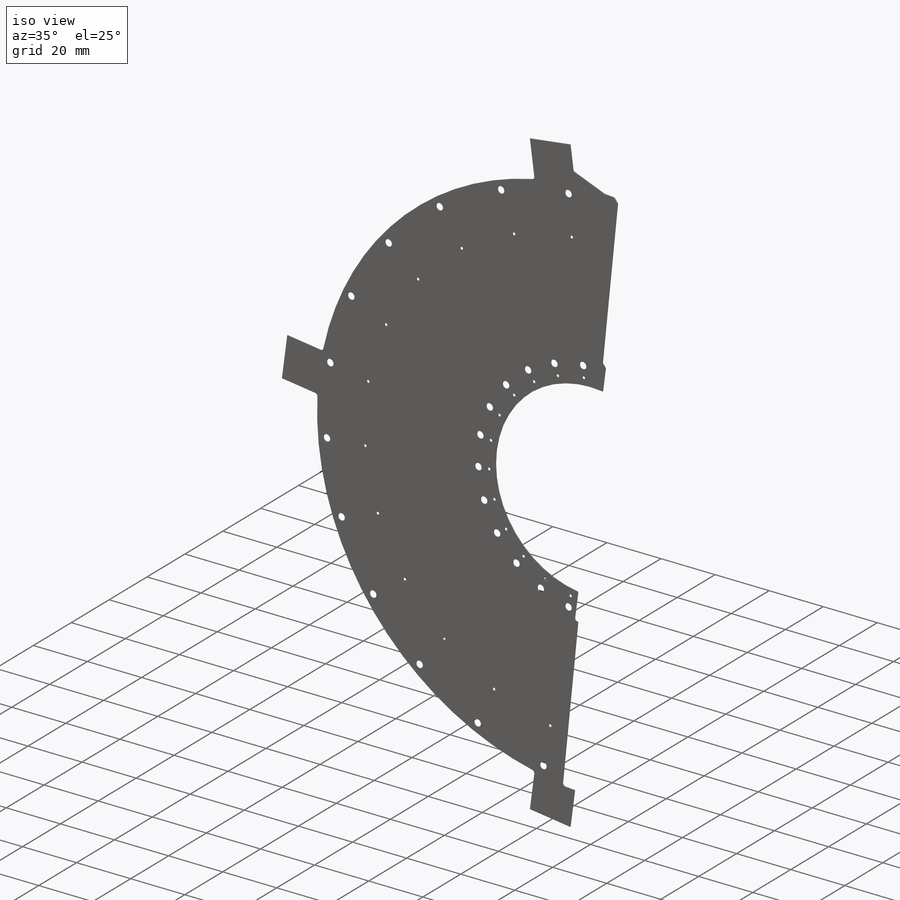
[diagram: iso view]
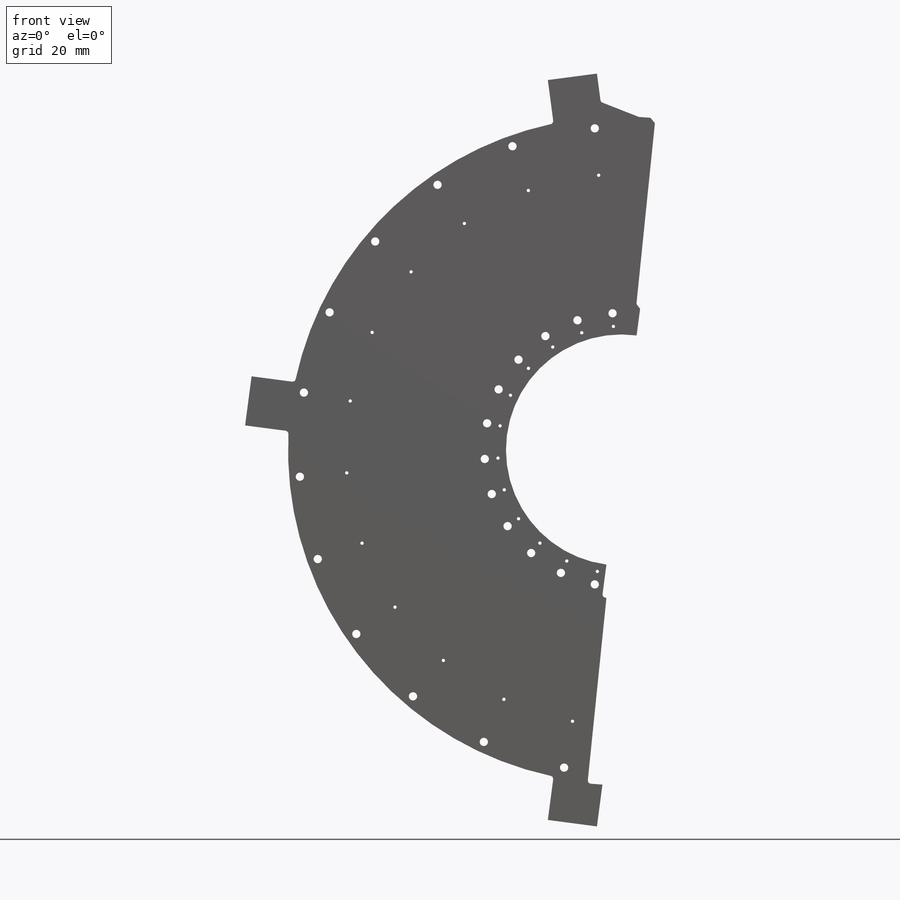
[diagram: front view]
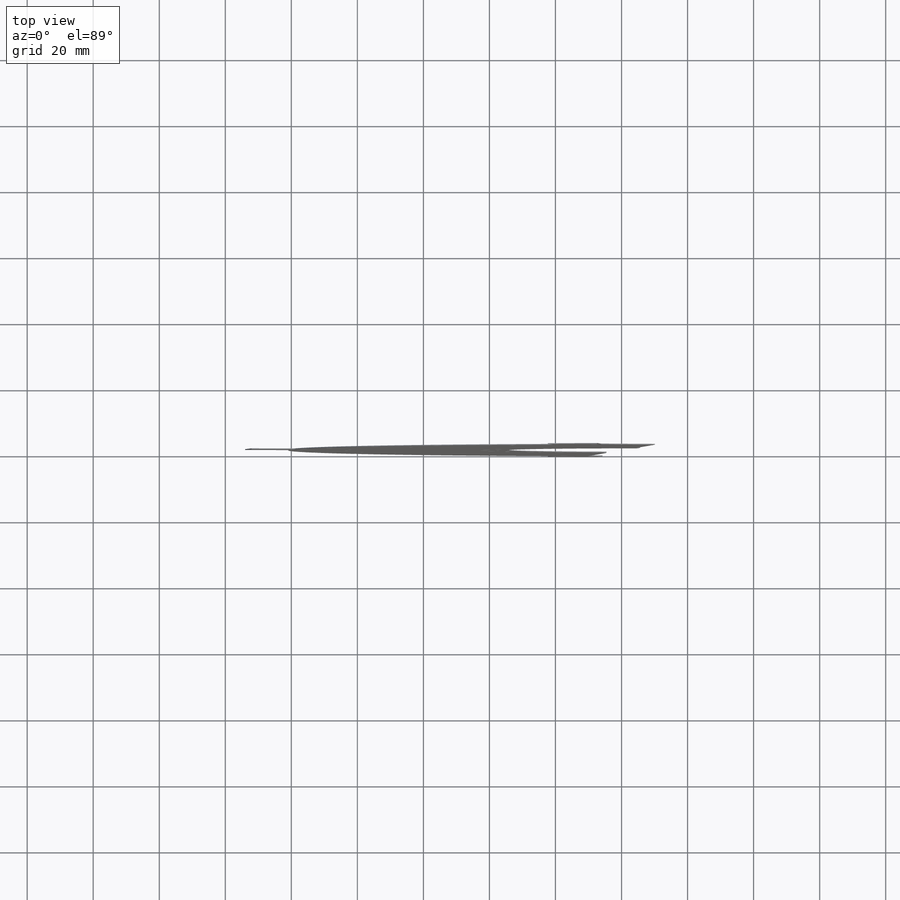
[diagram: top view]
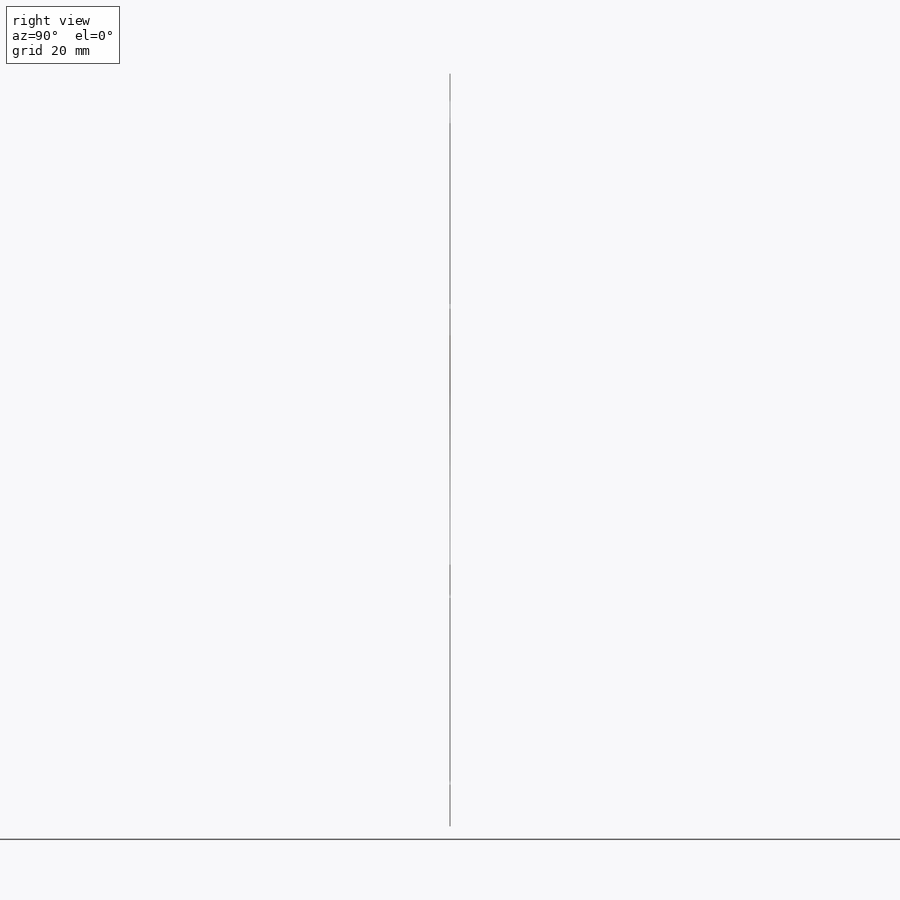
[diagram: right view]
SOLIDWORKS PART (.sldprt)
format: sldprt  version: not decoded by parser v0  size: 1,065,984 bytes
history: native  units: mm
features: sketch x5, cut_extrude x4, plane x3, pattern_circular x2, fillet x2, material x1, extrude x1, chamfer x1 + 2 further entries (+13 scaffold rows collapsed)
feature tree (34):
  scaffold x13  (default folders/planes/origin — collapsed)
  material  "Material <not specified>"
  plane  "Plane1"
  plane  "Plane2"
  plane  "Plane3"
  "Axis2"
  "Axis3"
  sketch  "Sketch7"  dims[c1.D1=35.0mm c1.D2=101.0mm c1.D4=45.0mm c2.D2=35.0mm c2.D10=101.0mm c2.D12=45.0mm c2.D17=101.5mm c2.D3=110.0mm c3.D3=4.0deg c4.D3=110.0mm c5.D3=3.25deg c5.D5=110.0mm c6.D5=~354.191979deg c7.D5=110.0mm c8.D5=0.0deg c8.D1=~122.399008mm c9.D1=7.5deg c9.D2=116.5mm c9.D3=15.0mm c9.D4=110.0mm c10.D4=7.5deg c10.D5=15.0mm c10.D6=114.0mm c10.D7=110.0mm c11.D7=7.5deg c11.D8=15.0mm c11.D9=114.0mm c11.D11=114.0mm c11.D12=~121.72218mm c11.D13=110.0mm c12.D13=~5.829862deg c12.D14=110.0mm c13.D14=~5.829862deg c13.D15=~12.457712mm c14.D15=~61.021365deg c14.D16=~8.654258mm]
  extrude  "Extrude5"  Depth=0.254mm
  sketch  "Sketch27"  dims[c1.D1=~3.96875mm c1.D2=0.5mm c2.D1=4.7244mm c2.D3=178.0mm c2.D4=176.0mm c3.D4=6.0deg c3.D1=~4.96875mm c3.D2=0.2794mm c4.D2=~6.424602deg c4.D4=104.0mm c4.D5=0.2794mm c5.D5=~7.653768deg]
  cut_extrude  "Cut-Extrude2"  [1 undecoded]
  sketch  "Sketch31"  dims[c1.D2=1.5875mm c1.D4=3.5mm c1.D5=1.0mm c1.D9=2.1844mm c1.D10=~0.79375mm c1.D12=3.5mm c1.D13=3.5mm c1.D11=3.5mm c1.D3=~97.653451mm c1.D6=83.5mm c1.D15=3.5mm c1.D16=3.5mm c2.D11=2.5mm c2.D1=~169.449665mm c3.D1=3.75deg c3.D2=~2.54375mm c3.D3=~106.653451mm c3.D6=102.25mm c3.D7=37.5mm c3.D8=41.5mm c3.D11=~9.977047mm c4.D11=7.5deg c4.D2=~177.004686mm c5.D2=11.25deg c5.D12=18.0mm c5.D13=18.0mm c6.D2=0.2794mm c7.D2=11.25deg c7.D11=18.0mm c7.D12=10.0mm c8.D11=11.0mm c8.D13=~174.870284mm c9.D13=1.0deg c9.D14=10.0mm c9.D15=10.0mm c9.D3=~178.296196mm c10.D3=1.0deg c10.D4=97.75mm]
  cut_extrude  "Cut-Extrude4"  [1 undecoded]
  pattern_circular  "CirPattern1"  Count=12 Angle=15deg
  sketch  "Sketch32"  dims[c1.D2=1.5875mm c1.D4=3.5mm c1.D5=~0.79375mm c1.D9=2.5mm c1.D10=1.0mm c1.D12=3.5mm c1.D13=3.5mm c1.D11=3.5mm c1.D3=~97.653451mm c1.D6=83.5mm c1.D15=3.5mm c1.D16=3.5mm c2.D11=2.1844mm c2.D3=~0.79375mm c2.D4=2.1844mm c2.D1=~169.449665mm c3.D1=3.75deg c3.D2=~2.54375mm c3.D3=~106.653451mm c3.D6=102.25mm c3.D7=37.5mm c3.D8=41.5mm c3.D11=~9.977047mm c4.D11=7.5deg c4.D2=~177.004686mm c5.D2=11.25deg c5.D12=18.0mm c5.D13=18.0mm c6.D2=0.2794mm c7.D2=11.25deg c7.D11=18.0mm c7.D12=10.0mm c8.D11=11.0mm c8.D13=~174.870284mm c9.D13=1.0deg c9.D14=10.0mm c9.D15=10.0mm c9.D3=~178.296196mm c10.D3=1.0deg c10.D4=97.75mm c10.D2=~29.742193mm c11.D2=11.25deg c11.D3=37.5mm c11.D4=41.5mm]
  cut_extrude  "Cut-Extrude5"  [1 undecoded]
  pattern_circular  "CirPattern2"  Count=12 Angle=15deg
  fillet  "Fillet1"  Radius=1mm
  chamfer  "Chamfer1"  Distance=1.5mm Angle=45deg
  sketch  "Sketch33"  dims[c1.D1=10.0mm c2.D1=45.0deg c3.D1=~1.453678mm c4.D1=45.0deg c4.D2=~1.859761mm]
  cut_extrude  "Cut-Extrude6"  [1 undecoded]
  fillet  "Fillet2"  Radius=1mm
decode coverage: 11 of 15 modeling features carry decoded parameters; 2 rows unclassified (native names shown)
note: ~ marks probable driven/reference dimensions
note: 4 parameter values undecoded
summary: no parameter record found for 4 features
note: suppression state not decoded; provenance and decode notes live in map.json
